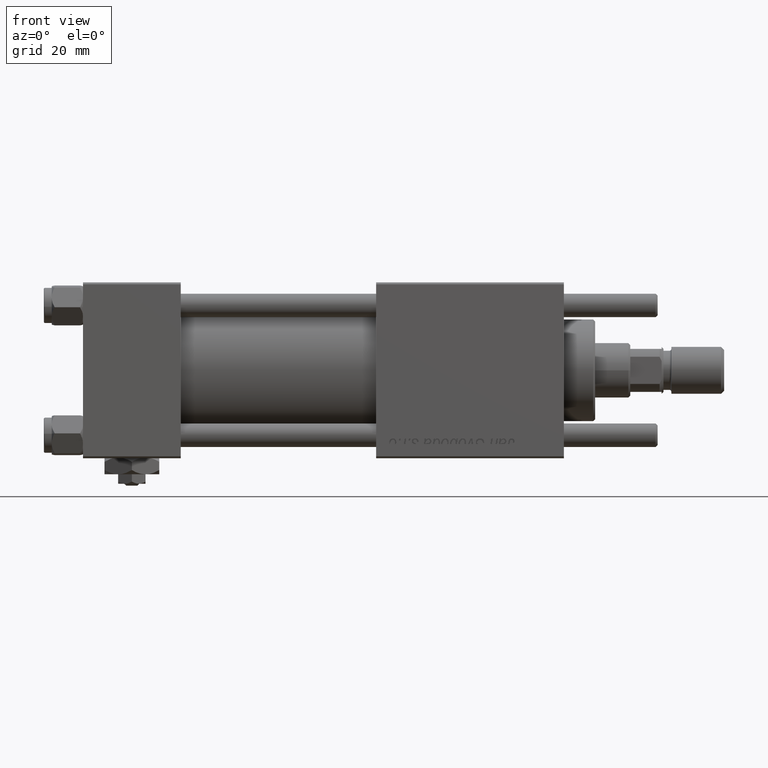
[diagram: clean part render]
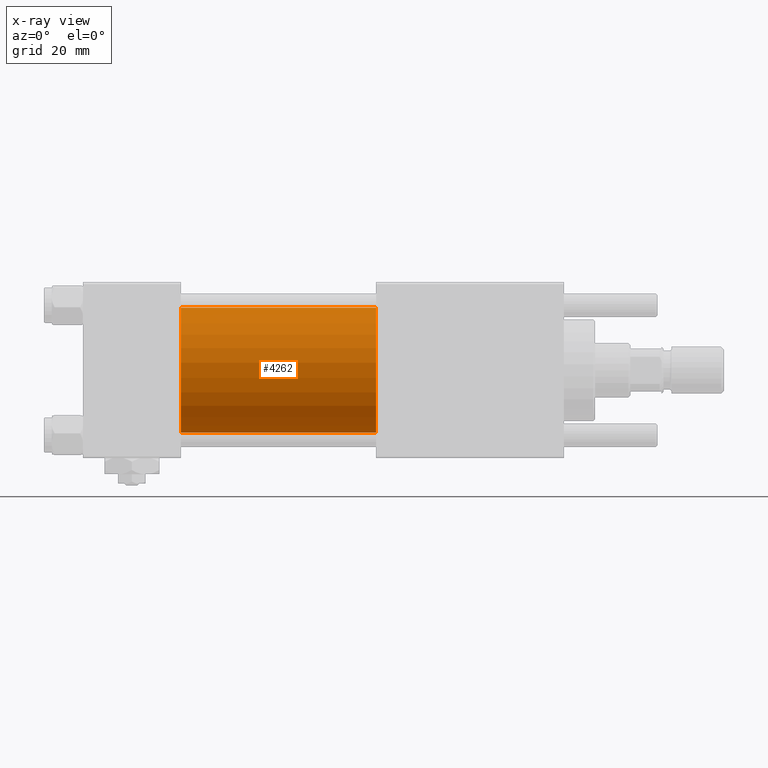
[diagram: x-ray — body ghosted, one internal face saturated and labeled with its STEP entity id]
A machine part, front view, then the same camera in x-ray: the body is ghosted and one INTERNAL B-rep face — a face not visible from any outside direction — is saturated and labeled: STEP entity #4262.
In plain terms, the highlighted cylindrical surface (partial cylindrical patch) has radius 16 mm, axis along (-1, -0, -0).
Its self-contained STEP definition (entity closure, byte-faithful):
#28 = DIRECTION ( 'NONE',  ( 0.000000000000000000, 0.000000000000000000, 1.000000000000000000 ) ) ;
#929 = FACE_OUTER_BOUND ( 'NONE', #37175, .T. ) ;
#961 = VERTEX_POINT ( 'NONE', #51925 ) ;
#1574 = LINE ( 'NONE', #28735, #39196 ) ;
#2189 = VECTOR ( 'NONE', #36409, 1000.000000000000000 ) ;
#3876 = CARTESIAN_POINT ( 'NONE',  ( 75.00000000000001421, -6.426503353294456087E-16, -16.00000000000000000 ) ) ;
#4227 = VERTEX_POINT ( 'NONE', #54929 ) ;
#4262 = ADVANCED_FACE ( 'NONE', ( #929 ), #37035, .F. ) ;
#5986 = CARTESIAN_POINT ( 'NONE',  ( 75.00000000000001421, -2.602085213965210642E-15, 0.000000000000000000 ) ) ;
#8276 = DIRECTION ( 'NONE',  ( 1.000000000000000000, 0.000000000000000000, 0.000000000000000000 ) ) ;
#10621 = ORIENTED_EDGE ( 'NONE', *, *, #49793, .T. ) ;
#11261 = ORIENTED_EDGE ( 'NONE', *, *, #52351, .F. ) ;
#13755 = LINE ( 'NONE', #40254, #2189 ) ;
#14584 = EDGE_CURVE ( 'NONE', #36598, #25736, #13755, .T. ) ;
#16271 = AXIS2_PLACEMENT_3D ( 'NONE', #35259, #35858, #30790 ) ;
#19959 = AXIS2_PLACEMENT_3D ( 'NONE', #5986, #32262, #28 ) ;
#25736 = VERTEX_POINT ( 'NONE', #43714 ) ;
#28580 = AXIS2_PLACEMENT_3D ( 'NONE', #53608, #8276, #36020 ) ;
#28735 = CARTESIAN_POINT ( 'NONE',  ( 75.00000000000001421, -2.602085213965210642E-15, 16.00000000000000000 ) ) ;
#30790 = DIRECTION ( 'NONE',  ( 0.000000000000000000, 0.000000000000000000, -1.000000000000000000 ) ) ;
#32262 = DIRECTION ( 'NONE',  ( -1.000000000000000000, -0.000000000000000000, -0.000000000000000000 ) ) ;
#34364 = CIRCLE ( 'NONE', #16271, 16.00000000000000000 ) ;
#35259 = CARTESIAN_POINT ( 'NONE',  ( 75.00000000000001421, -2.602085213965210642E-15, 0.000000000000000000 ) ) ;
#35858 = DIRECTION ( 'NONE',  ( 1.000000000000000000, 0.000000000000000000, 0.000000000000000000 ) ) ;
#36020 = DIRECTION ( 'NONE',  ( 0.000000000000000000, 0.000000000000000000, -1.000000000000000000 ) ) ;
#36409 = DIRECTION ( 'NONE',  ( -1.000000000000000000, -0.000000000000000000, -0.000000000000000000 ) ) ;
#36598 = VERTEX_POINT ( 'NONE', #3876 ) ;
#37035 = CYLINDRICAL_SURFACE ( 'NONE', #19959, 16.00000000000000000 ) ;
#37175 = EDGE_LOOP ( 'NONE', ( #10621, #43407, #45709, #11261 ) ) ;
#39196 = VECTOR ( 'NONE', #43013, 1000.000000000000000 ) ;
#40254 = CARTESIAN_POINT ( 'NONE',  ( 75.00000000000001421, -6.426503353294456087E-16, -16.00000000000000000 ) ) ;
#43013 = DIRECTION ( 'NONE',  ( -1.000000000000000000, -0.000000000000000000, -0.000000000000000000 ) ) ;
#43407 = ORIENTED_EDGE ( 'NONE', *, *, #14584, .T. ) ;
#43714 = CARTESIAN_POINT ( 'NONE',  ( 25.00000000000000000, -6.426503353294456087E-16, -16.00000000000000000 ) ) ;
#45709 = ORIENTED_EDGE ( 'NONE', *, *, #48049, .F. ) ;
#48049 = EDGE_CURVE ( 'NONE', #961, #25736, #49535, .T. ) ;
#49535 = CIRCLE ( 'NONE', #28580, 16.00000000000000000 ) ;
#49793 = EDGE_CURVE ( 'NONE', #4227, #36598, #34364, .T. ) ;
#51925 = CARTESIAN_POINT ( 'NONE',  ( 25.00000000000000000, -2.602085213965210642E-15, 16.00000000000000000 ) ) ;
#52351 = EDGE_CURVE ( 'NONE', #4227, #961, #1574, .T. ) ;
#53608 = CARTESIAN_POINT ( 'NONE',  ( 25.00000000000000000, -2.602085213965210642E-15, 0.000000000000000000 ) ) ;
#54929 = CARTESIAN_POINT ( 'NONE',  ( 75.00000000000001421, -2.602085213965210642E-15, 16.00000000000000000 ) ) ;